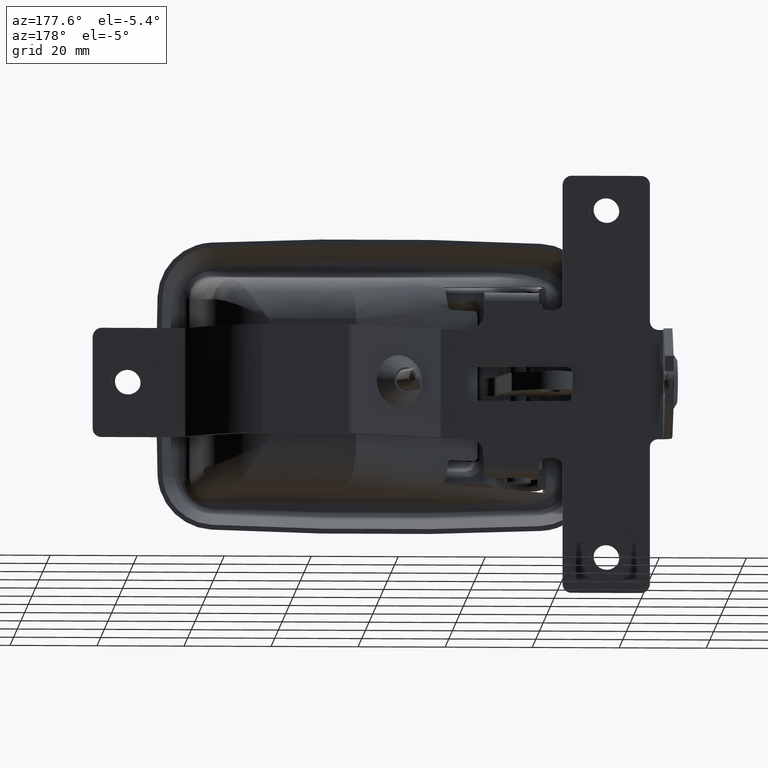
[diagram: clean part render]
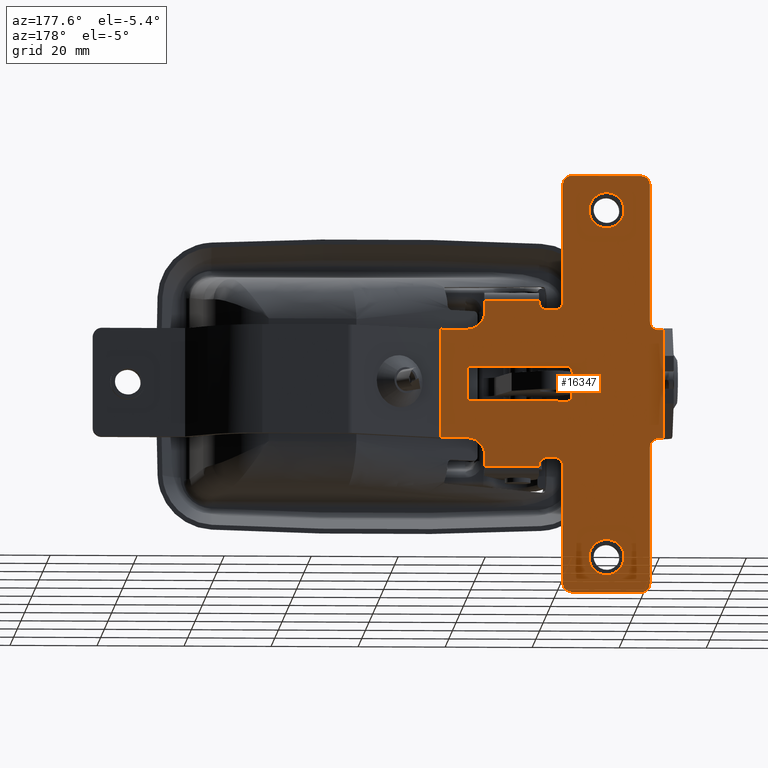
[diagram: same view with one face highlighted and labeled with its STEP entity id]
A machine part, auxiliary view. The second image highlights one B-rep face of the part: STEP entity #16347.
In plain terms, the highlighted face is a freeform B-spline surface patch.
Its self-contained STEP definition (entity closure, byte-faithful):
#12084=CARTESIAN_POINT('',(-49.696363222636450,8.999999999999899,-37.147398587274679));
#12085=VERTEX_POINT('',#12084);
#12091=CARTESIAN_POINT('',(-48.500000000000441,8.999999999999899,-40.000401880087153));
#12092=VERTEX_POINT('',#12091);
#12093=CARTESIAN_POINT('',(-49.696363222636450,8.999999999999899,-37.147398587274679));
#12094=CARTESIAN_POINT('',(-49.460286092493291,8.999999999999920,-37.379261225541761));
#12095=CARTESIAN_POINT('',(-49.066990061501564,8.999999999999856,-37.875914903676502));
#12096=CARTESIAN_POINT('',(-48.618578840467791,8.999999999999986,-38.842424312540189));
#12097=CARTESIAN_POINT('',(-48.499764177161012,8.999999999999828,-39.570220278554750));
#12098=CARTESIAN_POINT('',(-48.500000000000441,8.999999999999899,-40.000401880087153));
#12099=B_SPLINE_CURVE_WITH_KNOTS('',3,(#12093,#12094,#12095,#12096,#12097,#12098),.UNSPECIFIED.,.F.,.U.,(4,1,1,4),(0.000000042816873,0.992669129457216,1.886049108375447,3.176521239183770),.UNSPECIFIED.);
#12100=EDGE_CURVE('',#12085,#12092,#12099,.T.);
#12102=CARTESIAN_POINT('',(-52.500000000000000,8.999999999999901,-44.000399999999992));
#12103=VERTEX_POINT('',#12102);
#12104=CARTESIAN_POINT('',(-48.500000000000441,8.999999999999899,-40.000401880087153));
#12105=CARTESIAN_POINT('',(-48.499970343782437,8.999999999999886,-40.262196978756492));
#12106=CARTESIAN_POINT('',(-48.553189089344230,8.999999999999915,-40.802148372704472));
#12107=CARTESIAN_POINT('',(-48.816217715197077,8.999999999999902,-41.650728339848989));
#12108=CARTESIAN_POINT('',(-49.252751882862889,8.999999999999893,-42.389282633134833));
#12109=CARTESIAN_POINT('',(-49.878741546916473,8.999999999999908,-43.063099043232619));
#12110=CARTESIAN_POINT('',(-50.569594473648081,8.999999999999888,-43.543365053671323));
#12111=CARTESIAN_POINT('',(-51.485599516720292,8.999999999999913,-43.909651277703041));
#12112=CARTESIAN_POINT('',(-52.123651283077827,8.999999999999876,-44.000537310361302));
#12113=CARTESIAN_POINT('',(-52.500000000000000,8.999999999999901,-44.000399999999992));
#12114=B_SPLINE_CURVE_WITH_KNOTS('',3,(#12104,#12105,#12106,#12107,#12108,#12109,#12110,#12111,#12112,#12113),.UNSPECIFIED.,.F.,.U.,(4,1,1,1,1,1,1,4),(0.000000170210054,0.785386598141677,1.619894396847525,2.650764351238607,3.337944673513795,4.368800538172942,5.154212491704840,6.283223671863918),.UNSPECIFIED.);
#12115=EDGE_CURVE('',#12092,#12103,#12114,.T.);
#12117=CARTESIAN_POINT('',(-56.499999999999552,8.999999999999899,-40.000398119912852));
#12118=VERTEX_POINT('',#12117);
#12119=CARTESIAN_POINT('',(-52.500000000000000,8.999999999999901,-44.000399999999992));
#12120=CARTESIAN_POINT('',(-52.794517963964317,8.999999999999917,-44.000441232066777));
#12121=CARTESIAN_POINT('',(-53.432648317111038,8.999999999999888,-43.929645661647342));
#12122=CARTESIAN_POINT('',(-54.440209355671918,8.999999999999941,-43.562334047275392));
#12123=CARTESIAN_POINT('',(-55.292083265447118,8.999999999999776,-42.930593615533340));
#12124=CARTESIAN_POINT('',(-55.842762250588642,8.999999999999954,-42.233401469538180));
#12125=CARTESIAN_POINT('',(-56.194679159002682,8.999999999999881,-41.584695948084040));
#12126=CARTESIAN_POINT('',(-56.436462334972319,8.999999999999842,-40.867586538894230));
#12127=CARTESIAN_POINT('',(-56.500056926083019,9.000000000000030,-40.294919212355190));
#12128=CARTESIAN_POINT('',(-56.499999999999552,8.999999999999899,-40.000398119912852));
#12129=B_SPLINE_CURVE_WITH_KNOTS('',3,(#12119,#12120,#12121,#12122,#12123,#12124,#12125,#12126,#12127,#12128),.UNSPECIFIED.,.F.,.U.,(4,1,1,1,1,1,1,4),(0.000000169508537,0.883562507395871,1.914421330325885,3.190648703853657,4.025168912206824,4.565155515345772,5.399669861026443,6.283225791173750),.UNSPECIFIED.);
#12130=EDGE_CURVE('',#12103,#12118,#12129,.T.);
#12132=CARTESIAN_POINT('',(-55.353002084340297,8.999999999999899,-37.196762565103818));
#12133=VERTEX_POINT('',#12132);
#12134=CARTESIAN_POINT('',(-56.499999999999552,8.999999999999899,-40.000398119912852));
#12135=CARTESIAN_POINT('',(-56.500044389057322,8.999999999999911,-39.709146761992230));
#12136=CARTESIAN_POINT('',(-56.439644331168587,8.999999999999872,-39.159022780784163));
#12137=CARTESIAN_POINT('',(-56.116858117324398,8.999999999999927,-38.169886797482597));
#12138=CARTESIAN_POINT('',(-55.693605992404812,8.999999999999893,-37.542728060832758));
#12139=CARTESIAN_POINT('',(-55.353002084340297,8.999999999999899,-37.196762565103818));
#12140=B_SPLINE_CURVE_WITH_KNOTS('',3,(#12134,#12135,#12136,#12137,#12138,#12139),.UNSPECIFIED.,.F.,.U.,(4,1,1,4),(0.000000022678938,0.873776500411128,1.650466106444142,3.106760674571856),.UNSPECIFIED.);
#12141=EDGE_CURVE('',#12118,#12133,#12140,.T.);
#12177=CARTESIAN_POINT('',(-52.500000000000000,8.999999999999901,-36.000399999999999));
#12178=VERTEX_POINT('',#12177);
#12179=CARTESIAN_POINT('',(-55.353002084340297,8.999999999999899,-37.196762565103818));
#12180=CARTESIAN_POINT('',(-55.155899718891078,8.999999999999904,-36.996124650287562));
#12181=CARTESIAN_POINT('',(-54.731967140553543,8.999999999999901,-36.647332208655662));
#12182=CARTESIAN_POINT('',(-53.790148036519547,8.999999999999863,-36.152028647874531));
#12183=CARTESIAN_POINT('',(-53.012965001508057,8.999999999999936,-35.999923986551629));
#12184=CARTESIAN_POINT('',(-52.500000000000000,8.999999999999901,-36.000399999999999));
#12185=B_SPLINE_CURVE_WITH_KNOTS('',3,(#12179,#12180,#12181,#12182,#12183,#12184),.UNSPECIFIED.,.F.,.U.,(4,1,1,4),(0.000000042806638,0.843763403868885,1.637867859859363,3.176519734017759),.UNSPECIFIED.);
#12186=EDGE_CURVE('',#12133,#12178,#12185,.T.);
#12188=CARTESIAN_POINT('',(-52.500000000000000,8.999999999999901,-36.000399999999999));
#12189=CARTESIAN_POINT('',(-52.144024336973906,8.999999999999902,-36.000316934119851));
#12190=CARTESIAN_POINT('',(-51.399724774429913,8.999999999999904,-36.100329278498052));
#12191=CARTESIAN_POINT('',(-50.440995072586212,8.999999999999893,-36.519983644866343));
#12192=CARTESIAN_POINT('',(-49.904080125141597,8.999999999999902,-36.943246638037770));
#12193=CARTESIAN_POINT('',(-49.696363222636450,8.999999999999899,-37.147398587274679));
#12194=B_SPLINE_CURVE_WITH_KNOTS('',3,(#12188,#12189,#12190,#12191,#12192,#12193),.UNSPECIFIED.,.F.,.U.,(4,1,1,4),(0.000000022635578,1.067949865301164,2.232985287153880,3.106762191547471),.UNSPECIFIED.);
#12195=EDGE_CURVE('',#12178,#12085,#12194,.T.);
#12284=CARTESIAN_POINT('',(-49.696363222636450,8.999999999999899,42.853001412725327));
#12285=VERTEX_POINT('',#12284);
#12291=CARTESIAN_POINT('',(-48.500000000000441,8.999999999999899,39.999998119912860));
#12292=VERTEX_POINT('',#12291);
#12293=CARTESIAN_POINT('',(-49.696363222636450,8.999999999999899,42.853001412725327));
#12294=CARTESIAN_POINT('',(-49.389386399787263,8.999999999999908,42.551650581111211));
#12295=CARTESIAN_POINT('',(-48.923777182230772,8.999999999999877,41.916234349032408));
#12296=CARTESIAN_POINT('',(-48.566519428223508,8.999999999999897,40.909936820635998));
#12297=CARTESIAN_POINT('',(-48.499970605093388,8.999999999999911,40.281248355236272));
#12298=CARTESIAN_POINT('',(-48.500000000000441,8.999999999999899,39.999998119912860));
#12299=B_SPLINE_CURVE_WITH_KNOTS('',3,(#12293,#12294,#12295,#12296,#12297,#12298),.UNSPECIFIED.,.F.,.U.,(4,1,1,4),(0.000000042820151,1.290472173567691,2.332757478314516,3.176521239183723),.UNSPECIFIED.);
#12300=EDGE_CURVE('',#12285,#12292,#12299,.T.);
#12302=CARTESIAN_POINT('',(-52.500000000000000,8.999999999999901,36.000000000000007));
#12303=VERTEX_POINT('',#12302);
#12304=CARTESIAN_POINT('',(-48.500000000000441,8.999999999999899,39.999998119912860));
#12305=CARTESIAN_POINT('',(-48.499973363128660,8.999999999999886,39.738203286803561));
#12306=CARTESIAN_POINT('',(-48.553189155189649,8.999999999999931,39.198251799404957));
#12307=CARTESIAN_POINT('',(-48.806478905305937,8.999999999999892,38.381105044254767));
#12308=CARTESIAN_POINT('',(-49.216911438270422,8.999999999999876,37.666948173017417));
#12309=CARTESIAN_POINT('',(-49.804350852383443,8.999999999999897,37.002538701950812));
#12310=CARTESIAN_POINT('',(-50.456608481044888,8.999999999999917,36.524986104215792));
#12311=CARTESIAN_POINT('',(-51.387525954945318,8.999999999999883,36.112318113826809));
#12312=CARTESIAN_POINT('',(-52.058168628454652,8.999999999999911,35.999741752730920));
#12313=CARTESIAN_POINT('',(-52.500000000000000,8.999999999999901,36.000000000000007));
#12314=B_SPLINE_CURVE_WITH_KNOTS('',3,(#12304,#12305,#12306,#12307,#12308,#12309,#12310,#12311,#12312,#12313),.UNSPECIFIED.,.F.,.U.,(4,1,1,1,1,1,1,4),(0.000000170169266,0.785386598105968,1.619894396816537,2.552588982715761,3.239776739551552,4.270623102334425,4.957858098946082,6.283223671864081),.UNSPECIFIED.);
#12315=EDGE_CURVE('',#12292,#12303,#12314,.T.);
#12317=CARTESIAN_POINT('',(-56.499999999999552,8.999999999999901,40.000001880087140));
#12318=VERTEX_POINT('',#12317);
#12319=CARTESIAN_POINT('',(-52.500000000000000,8.999999999999901,36.000000000000007));
#12320=CARTESIAN_POINT('',(-52.761792362840652,8.999999999999888,35.999979388362718));
#12321=CARTESIAN_POINT('',(-53.367213538327412,8.999999999999949,36.059588324761897));
#12322=CARTESIAN_POINT('',(-54.211461621947450,8.999999999999840,36.344185050263889));
#12323=CARTESIAN_POINT('',(-54.936973560463350,8.999999999999982,36.797532702100142));
#12324=CARTESIAN_POINT('',(-55.538614797403483,8.999999999999899,37.356387097814022));
#12325=CARTESIAN_POINT('',(-55.988305797968700,8.999999999999742,37.986650606097911));
#12326=CARTESIAN_POINT('',(-56.387688910985581,8.999999999999989,38.887520443615841));
#12327=CARTESIAN_POINT('',(-56.500257008506708,8.999999999999945,39.558172877117983));
#12328=CARTESIAN_POINT('',(-56.499999999999552,8.999999999999901,40.000001880087140));
#12329=B_SPLINE_CURVE_WITH_KNOTS('',3,(#12319,#12320,#12321,#12322,#12323,#12324,#12325,#12326,#12327,#12328),.UNSPECIFIED.,.F.,.U.,(4,1,1,1,1,1,1,4),(0.000000169506634,0.785386862743604,1.816246544497132,2.650765245580010,3.337945802600284,4.270624541624022,4.957859770507705,6.283225791173744),.UNSPECIFIED.);
#12330=EDGE_CURVE('',#12303,#12318,#12329,.T.);
#12332=CARTESIAN_POINT('',(-55.353002084340297,8.999999999999901,42.803637434896167));
#12333=VERTEX_POINT('',#12332);
#12334=CARTESIAN_POINT('',(-56.499999999999552,8.999999999999901,40.000001880087140));
#12335=CARTESIAN_POINT('',(-56.500111625079228,8.999999999999911,40.355990597061648));
#12336=CARTESIAN_POINT('',(-56.426041123592817,8.999999999999892,40.906053378532540));
#12337=CARTESIAN_POINT('',(-56.080034514011821,8.999999999999918,41.885059688857332));
#12338=CARTESIAN_POINT('',(-55.693613142159030,8.999999999999908,42.457664420544241));
#12339=CARTESIAN_POINT('',(-55.353002084340297,8.999999999999901,42.803637434896167));
#12340=B_SPLINE_CURVE_WITH_KNOTS('',3,(#12334,#12335,#12336,#12337,#12338,#12339),.UNSPECIFIED.,.F.,.U.,(4,1,1,4),(0.000000022678830,1.067949343842104,1.650466106444013,3.106760674571859),.UNSPECIFIED.);
#12341=EDGE_CURVE('',#12318,#12333,#12340,.T.);
#12377=CARTESIAN_POINT('',(-52.500000000000000,8.999999999999901,44.0));
#12378=VERTEX_POINT('',#12377);
#12379=CARTESIAN_POINT('',(-55.353002084340297,8.999999999999901,42.803637434896167));
#12380=CARTESIAN_POINT('',(-55.132725576792012,8.999999999999867,43.027899457938439));
#12381=CARTESIAN_POINT('',(-54.703874465436790,8.999999999999961,43.371827859241243));
#12382=CARTESIAN_POINT('',(-53.757063775429430,8.999999999999863,43.854850624080093));
#12383=CARTESIAN_POINT('',(-53.012968084609163,8.999999999999925,44.000465879040782));
#12384=CARTESIAN_POINT('',(-52.500000000000000,8.999999999999901,44.0));
#12385=B_SPLINE_CURVE_WITH_KNOTS('',3,(#12379,#12380,#12381,#12382,#12383,#12384),.UNSPECIFIED.,.F.,.U.,(4,1,1,4),(0.000000042804671,0.943031283647884,1.637867859859471,3.176519734017751),.UNSPECIFIED.);
#12386=EDGE_CURVE('',#12333,#12378,#12385,.T.);
#12388=CARTESIAN_POINT('',(-52.500000000000000,8.999999999999901,44.0));
#12389=CARTESIAN_POINT('',(-52.014514346469937,8.999999999999908,44.000392391973293));
#12390=CARTESIAN_POINT('',(-51.270516119612182,8.999999999999897,43.862804604869339));
#12391=CARTESIAN_POINT('',(-50.338781756700591,8.999999999999904,43.399656856212353));
#12392=CARTESIAN_POINT('',(-49.904067990461073,8.999999999999895,43.057181410538533));
#12393=CARTESIAN_POINT('',(-49.696363222636450,8.999999999999899,42.853001412725327));
#12394=B_SPLINE_CURVE_WITH_KNOTS('',3,(#12388,#12389,#12390,#12391,#12392,#12393),.UNSPECIFIED.,.F.,.U.,(4,1,1,4),(0.000000022636892,1.456295301868011,2.232985287153747,3.106762191547466),.UNSPECIFIED.);
#12395=EDGE_CURVE('',#12378,#12285,#12394,.T.);
#13638=CARTESIAN_POINT('',(-37.0,9.0,19.100000000000001));
#13639=VERTEX_POINT('',#13638);
#13640=CARTESIAN_POINT('',(-24.500000000000000,9.0,19.100000000000001));
#13641=VERTEX_POINT('',#13640);
#13642=CARTESIAN_POINT('',(-37.0,9.0,19.100000000000001));
#13643=CARTESIAN_POINT('',(-24.500000000000000,9.0,19.100000000000001));
#13644=QUASI_UNIFORM_CURVE('',1,(#13642,#13643),.UNSPECIFIED.,.F.,.U.);
#13645=EDGE_CURVE('',#13639,#13641,#13644,.T.);
#13712=CARTESIAN_POINT('',(-37.0,9.0,-19.100000000000001));
#13713=VERTEX_POINT('',#13712);
#13719=CARTESIAN_POINT('',(-24.500000000000000,9.0,-19.100000000000001));
#13720=VERTEX_POINT('',#13719);
#13721=CARTESIAN_POINT('',(-24.500000000000000,9.0,-19.100000000000001));
#13722=CARTESIAN_POINT('',(-37.0,9.0,-19.100000000000001));
#13723=QUASI_UNIFORM_CURVE('',1,(#13721,#13722),.UNSPECIFIED.,.F.,.U.);
#13724=EDGE_CURVE('',#13720,#13713,#13723,.T.);
#14168=CARTESIAN_POINT('',(-44.538800000000002,8.999999999999901,3.0));
#14169=VERTEX_POINT('',#14168);
#14175=CARTESIAN_POINT('',(-43.538800000000002,8.999999999999901,4.0));
#14176=VERTEX_POINT('',#14175);
#14177=CARTESIAN_POINT('',(-43.538800000000002,8.999999999999901,4.0));
#14178=CARTESIAN_POINT('',(-43.620605191350023,8.999999999999899,4.000010338082505));
#14179=CARTESIAN_POINT('',(-43.816983386163443,8.999999999999911,3.975820734492554));
#14180=CARTESIAN_POINT('',(-44.067416670032877,8.999999999999902,3.864820685999502));
#14181=CARTESIAN_POINT('',(-44.300490570515429,8.999999999999908,3.668703862296265));
#14182=CARTESIAN_POINT('',(-44.485019356332593,8.999999999999890,3.392616515579106));
#14183=CARTESIAN_POINT('',(-44.538968706042482,8.999999999999906,3.139099220593385));
#14184=CARTESIAN_POINT('',(-44.538800000000002,8.999999999999901,3.0));
#14185=B_SPLINE_CURVE_WITH_KNOTS('',3,(#14177,#14178,#14179,#14180,#14181,#14182,#14183,#14184),.UNSPECIFIED.,.F.,.U.,(4,1,1,1,1,4),(0.000000316539192,0.245429941989382,0.589086540228977,0.809914846752395,1.153582026486022,1.570835744415496),.UNSPECIFIED.);
#14186=EDGE_CURVE('',#14176,#14169,#14185,.T.);
#14209=CARTESIAN_POINT('',(-21.500000000000000,8.999999999999901,4.0));
#14210=VERTEX_POINT('',#14209);
#14211=CARTESIAN_POINT('',(-21.500000000000000,8.999999999999901,4.0));
#14212=CARTESIAN_POINT('',(-43.538800000000002,8.999999999999901,4.0));
#14213=QUASI_UNIFORM_CURVE('',1,(#14211,#14212),.UNSPECIFIED.,.F.,.U.);
#14214=EDGE_CURVE('',#14210,#14176,#14213,.T.);
#14252=CARTESIAN_POINT('',(-20.500000000000000,8.999999999999901,3.0));
#14253=VERTEX_POINT('',#14252);
#14254=CARTESIAN_POINT('',(-20.500000000000000,8.999999999999901,3.0));
#14255=CARTESIAN_POINT('',(-20.499988649702480,8.999999999999904,3.098161484066635));
#14256=CARTESIAN_POINT('',(-20.533887464722429,8.999999999999899,3.327295164917385));
#14257=CARTESIAN_POINT('',(-20.691147990141879,8.999999999999893,3.621442481356049));
#14258=CARTESIAN_POINT('',(-20.942459266899611,8.999999999999943,3.849165957845934));
#14259=CARTESIAN_POINT('',(-21.213659177159460,8.999999999999732,3.973335952433076));
#14260=CARTESIAN_POINT('',(-21.410006909707509,9.000000000000089,4.000026482414648));
#14261=CARTESIAN_POINT('',(-21.500000000000000,8.999999999999901,4.0));
#14262=B_SPLINE_CURVE_WITH_KNOTS('',3,(#14254,#14255,#14256,#14257,#14258,#14259,#14260,#14261),.UNSPECIFIED.,.F.,.U.,(4,1,1,1,1,4),(0.000000316537550,0.294521889950027,0.687263051410395,0.981751020764692,1.300856679780036,1.570835744415502),.UNSPECIFIED.);
#14263=EDGE_CURVE('',#14253,#14210,#14262,.T.);
#14286=CARTESIAN_POINT('',(-20.500000000000000,8.999999999999901,-3.0));
#14287=VERTEX_POINT('',#14286);
#14288=CARTESIAN_POINT('',(-20.500000000000000,8.999999999999901,-3.0));
#14289=CARTESIAN_POINT('',(-20.500000000000000,8.999999999999901,3.0));
#14290=QUASI_UNIFORM_CURVE('',1,(#14288,#14289),.UNSPECIFIED.,.F.,.U.);
#14291=EDGE_CURVE('',#14287,#14253,#14290,.T.);
#14328=CARTESIAN_POINT('',(-21.500000000000000,8.999999999999901,-4.0));
#14329=VERTEX_POINT('',#14328);
#14330=CARTESIAN_POINT('',(-21.500000000000000,8.999999999999901,-4.0));
#14331=CARTESIAN_POINT('',(-21.344515482730561,8.999999999999917,-4.000263452007633));
#14332=CARTESIAN_POINT('',(-21.074786756964389,8.999999999999885,-3.935757510508313));
#14333=CARTESIAN_POINT('',(-20.774736593609489,8.999999999999888,-3.713129420643664));
#14334=CARTESIAN_POINT('',(-20.560380951699209,8.999999999999949,-3.408855108957863));
#14335=CARTESIAN_POINT('',(-20.499728786057378,8.999999999999867,-3.155500708682451));
#14336=CARTESIAN_POINT('',(-20.500000000000000,8.999999999999901,-3.0));
#14337=B_SPLINE_CURVE_WITH_KNOTS('',3,(#14330,#14331,#14332,#14333,#14334,#14335,#14336),.UNSPECIFIED.,.F.,.U.,(4,1,1,1,4),(0.000000316539592,0.466343486453889,0.809914846752917,1.104490577724666,1.570835744415537),.UNSPECIFIED.);
#14338=EDGE_CURVE('',#14329,#14287,#14337,.T.);
#14361=CARTESIAN_POINT('',(-43.538800000000002,8.999999999999901,-4.0));
#14362=VERTEX_POINT('',#14361);
#14363=CARTESIAN_POINT('',(-43.538800000000002,8.999999999999901,-4.0));
#14364=CARTESIAN_POINT('',(-21.500000000000000,8.999999999999901,-4.0));
#14365=QUASI_UNIFORM_CURVE('',1,(#14363,#14364),.UNSPECIFIED.,.F.,.U.);
#14366=EDGE_CURVE('',#14362,#14329,#14365,.T.);
#14403=CARTESIAN_POINT('',(-44.538800000000002,8.999999999999901,-3.0));
#14404=VERTEX_POINT('',#14403);
#14405=CARTESIAN_POINT('',(-44.538800000000002,8.999999999999901,-3.0));
#14406=CARTESIAN_POINT('',(-44.539330963898848,8.999999999999917,-3.180135669998899));
#14407=CARTESIAN_POINT('',(-44.468440694373761,8.999999999999883,-3.433202414132395));
#14408=CARTESIAN_POINT('',(-44.253980992878773,8.999999999999929,-3.714822739010366));
#14409=CARTESIAN_POINT('',(-43.980234209349447,8.999999999999865,-3.928696788878382));
#14410=CARTESIAN_POINT('',(-43.710694767699842,8.999999999999950,-4.000378646256803));
#14411=CARTESIAN_POINT('',(-43.538800000000002,8.999999999999901,-4.0));
#14412=B_SPLINE_CURVE_WITH_KNOTS('',3,(#14405,#14406,#14407,#14408,#14409,#14410,#14411),.UNSPECIFIED.,.F.,.U.,(4,1,1,1,4),(0.000000316540120,0.539993994382229,0.760920445867800,1.055397118809246,1.570835744415493),.UNSPECIFIED.);
#14413=EDGE_CURVE('',#14404,#14362,#14412,.T.);
#14434=CARTESIAN_POINT('',(-44.538800000000002,8.999999999999901,3.0));
#14435=CARTESIAN_POINT('',(-44.538800000000002,8.999999999999901,-3.0));
#14436=QUASI_UNIFORM_CURVE('',1,(#14434,#14435),.UNSPECIFIED.,.F.,.U.);
#14437=EDGE_CURVE('',#14169,#14404,#14436,.T.);
#14448=CARTESIAN_POINT('',(-65.500000000000000,8.999999999999901,-12.500000000000000));
#14449=VERTEX_POINT('',#14448);
#14450=CARTESIAN_POINT('',(-65.500000000000000,9.0,12.500000000000000));
#14451=VERTEX_POINT('',#14450);
#14452=CARTESIAN_POINT('',(-65.500000000000000,8.999999999999901,-12.500000000000000));
#14453=CARTESIAN_POINT('',(-65.500000000000000,9.0,12.500000000000000));
#14454=QUASI_UNIFORM_CURVE('',1,(#14452,#14453),.UNSPECIFIED.,.F.,.U.);
#14455=EDGE_CURVE('',#14449,#14451,#14454,.T.);
#14798=CARTESIAN_POINT('',(-37.0,8.999999999999901,19.0));
#14799=VERTEX_POINT('',#14798);
#14805=CARTESIAN_POINT('',(-39.0,8.999999999999901,17.0));
#14806=VERTEX_POINT('',#14805);
#14807=CARTESIAN_POINT('',(-39.0,8.999999999999901,17.0));
#14808=CARTESIAN_POINT('',(-38.738132642857209,8.999999999999886,16.999684465129270));
#14809=CARTESIAN_POINT('',(-38.362058173940291,8.999999999999913,17.075025303844360));
#14810=CARTESIAN_POINT('',(-37.851790494228347,8.999999999999879,17.339723506475309));
#14811=CARTESIAN_POINT('',(-37.488620967075697,8.999999999999933,17.653033019632922));
#14812=CARTESIAN_POINT('',(-37.112984391162144,8.999999999999874,18.215034426936839));
#14813=CARTESIAN_POINT('',(-36.999408732873484,8.999999999999924,18.688981520675910));
#14814=CARTESIAN_POINT('',(-37.0,8.999999999999901,19.0));
#14815=B_SPLINE_CURVE_WITH_KNOTS('',3,(#14807,#14808,#14809,#14810,#14811,#14812,#14813,#14814),.UNSPECIFIED.,.F.,.U.,(4,1,1,1,1,4),(0.000000287140076,0.785418087528789,1.129064130189369,1.718073068149598,2.208977835777261,3.141671488696547),.UNSPECIFIED.);
#14816=EDGE_CURVE('',#14806,#14799,#14815,.T.);
#14852=CARTESIAN_POINT('',(-40.500000000000000,8.999999999999901,17.0));
#14853=VERTEX_POINT('',#14852);
#14854=CARTESIAN_POINT('',(-39.0,8.999999999999901,17.0));
#14855=CARTESIAN_POINT('',(-40.500000000000000,8.999999999999901,17.0));
#14856=QUASI_UNIFORM_CURVE('',1,(#14854,#14855),.UNSPECIFIED.,.F.,.U.);
#14857=EDGE_CURVE('',#14806,#14853,#14856,.T.);
#14882=CARTESIAN_POINT('',(-42.500000000000000,8.999999999999901,19.0));
#14883=VERTEX_POINT('',#14882);
#14884=CARTESIAN_POINT('',(-42.500000000000000,8.999999999999901,19.0));
#14885=CARTESIAN_POINT('',(-42.500315980665214,8.999999999999915,18.738134103234199));
#14886=CARTESIAN_POINT('',(-42.424980898492272,8.999999999999892,18.362051613717359));
#14887=CARTESIAN_POINT('',(-42.160263982941757,8.999999999999917,17.851803430130371));
#14888=CARTESIAN_POINT('',(-41.846984936231109,8.999999999999865,17.488602360850841));
#14889=CARTESIAN_POINT('',(-41.284954184308077,8.999999999999973,17.112999303232382));
#14890=CARTESIAN_POINT('',(-40.811022563649182,8.999999999999902,16.999402360951731));
#14891=CARTESIAN_POINT('',(-40.500000000000000,8.999999999999901,17.0));
#14892=B_SPLINE_CURVE_WITH_KNOTS('',3,(#14884,#14885,#14886,#14887,#14888,#14889,#14890,#14891),.UNSPECIFIED.,.F.,.U.,(4,1,1,1,1,4),(0.000000287142174,0.785418087531084,1.129064130191790,1.718073068151907,2.208977835778769,3.141671488696511),.UNSPECIFIED.);
#14893=EDGE_CURVE('',#14883,#14853,#14892,.T.);
#14929=CARTESIAN_POINT('',(-42.500000000000000,8.999999999999901,46.0));
#14930=VERTEX_POINT('',#14929);
#14931=CARTESIAN_POINT('',(-42.500000000000000,8.999999999999901,19.0));
#14932=CARTESIAN_POINT('',(-42.500000000000000,8.999999999999901,46.0));
#14933=QUASI_UNIFORM_CURVE('',1,(#14931,#14932),.UNSPECIFIED.,.F.,.U.);
#14934=EDGE_CURVE('',#14883,#14930,#14933,.T.);
#14972=CARTESIAN_POINT('',(-44.500000000000000,8.999999999999901,48.0));
#14973=VERTEX_POINT('',#14972);
#14974=CARTESIAN_POINT('',(-42.500000000000000,8.999999999999901,46.0));
#14975=CARTESIAN_POINT('',(-42.499885462015023,8.999999999999902,46.212717820929399));
#14976=CARTESIAN_POINT('',(-42.568486546709892,8.999999999999897,46.638107994164749));
#14977=CARTESIAN_POINT('',(-42.843209267927982,8.999999999999904,47.167630346258413));
#14978=CARTESIAN_POINT('',(-43.241125598146532,8.999999999999870,47.585546078460617));
#14979=CARTESIAN_POINT('',(-43.780234423668318,8.999999999999970,47.908686670754321));
#14980=CARTESIAN_POINT('',(-44.238153599042242,8.999999999999796,48.000292607813527));
#14981=CARTESIAN_POINT('',(-44.500000000000000,8.999999999999901,48.0));
#14982=B_SPLINE_CURVE_WITH_KNOTS('',3,(#14974,#14975,#14976,#14977,#14978,#14979,#14980,#14981),.UNSPECIFIED.,.F.,.U.,(4,1,1,1,1,4),(0.000000287141676,0.638142235001139,1.276337533546506,1.767177705976663,2.356253688307754,3.141671488696463),.UNSPECIFIED.);
#14983=EDGE_CURVE('',#14930,#14973,#14982,.T.);
#15006=CARTESIAN_POINT('',(-60.500000000000000,8.999999999999901,48.0));
#15007=VERTEX_POINT('',#15006);
#15008=CARTESIAN_POINT('',(-44.500000000000000,8.999999999999901,48.0));
#15009=CARTESIAN_POINT('',(-60.500000000000000,8.999999999999901,48.0));
#15010=QUASI_UNIFORM_CURVE('',1,(#15008,#15009),.UNSPECIFIED.,.F.,.U.);
#15011=EDGE_CURVE('',#14973,#15007,#15010,.T.);
#15049=CARTESIAN_POINT('',(-62.500000000000000,8.999999999999901,46.0));
#15050=VERTEX_POINT('',#15049);
#15051=CARTESIAN_POINT('',(-60.500000000000000,8.999999999999901,48.0));
#15052=CARTESIAN_POINT('',(-60.811028710695552,8.999999999999892,48.000581290646501));
#15053=CARTESIAN_POINT('',(-61.235930187978802,8.999999999999904,47.898793298361269));
#15054=CARTESIAN_POINT('',(-61.725242661468293,8.999999999999902,47.597088167921882));
#15055=CARTESIAN_POINT('',(-62.038837968818129,8.999999999999901,47.305816673302353));
#15056=CARTESIAN_POINT('',(-62.387026900465571,8.999999999999893,46.784972820830333));
#15057=CARTESIAN_POINT('',(-62.500589505631872,8.999999999999917,46.311017609661150));
#15058=CARTESIAN_POINT('',(-62.500000000000000,8.999999999999901,46.0));
#15059=B_SPLINE_CURVE_WITH_KNOTS('',3,(#15051,#15052,#15053,#15054,#15055,#15056,#15057,#15058),.UNSPECIFIED.,.F.,.U.,(4,1,1,1,1,4),(0.000000287136406,0.932693940056489,1.276337533543943,1.718073068149574,2.208977835777600,3.141671488696456),.UNSPECIFIED.);
#15060=EDGE_CURVE('',#15007,#15050,#15059,.T.);
#15083=CARTESIAN_POINT('',(-62.500000000000000,8.999999999999901,14.500000000000000));
#15084=VERTEX_POINT('',#15083);
#15085=CARTESIAN_POINT('',(-62.500000000000000,8.999999999999901,46.0));
#15086=CARTESIAN_POINT('',(-62.500000000000000,8.999999999999901,14.500000000000000));
#15087=QUASI_UNIFORM_CURVE('',1,(#15085,#15086),.UNSPECIFIED.,.F.,.U.);
#15088=EDGE_CURVE('',#15050,#15084,#15087,.T.);
#15113=CARTESIAN_POINT('',(-64.500000000000000,8.999999999999901,12.500000000000000));
#15114=VERTEX_POINT('',#15113);
#15115=CARTESIAN_POINT('',(-64.500000000000000,8.999999999999901,12.500000000000000));
#15116=CARTESIAN_POINT('',(-64.238158860634030,8.999999999999901,12.499717273771150));
#15117=CARTESIAN_POINT('',(-63.731112974236403,8.999999999999922,12.601044456832240));
#15118=CARTESIAN_POINT('',(-63.159163211570437,8.999999999999865,12.973006076003900));
#15119=CARTESIAN_POINT('',(-62.824658824784649,8.999999999999973,13.381013378375350));
#15120=CARTESIAN_POINT('',(-62.575001714677398,8.999999999999854,13.862040685738661));
#15121=CARTESIAN_POINT('',(-62.499691571917197,8.999999999999934,14.238139084880380));
#15122=CARTESIAN_POINT('',(-62.500000000000000,8.999999999999901,14.500000000000000));
#15123=B_SPLINE_CURVE_WITH_KNOTS('',3,(#15115,#15116,#15117,#15118,#15119,#15120,#15121,#15122),.UNSPECIFIED.,.F.,.U.,(4,1,1,1,1,4),(0.000000287133636,0.785418087524479,1.521788409456852,2.012607645644544,2.356253688306194,3.141671488696570),.UNSPECIFIED.);
#15124=EDGE_CURVE('',#15114,#15084,#15123,.T.);
#15164=CARTESIAN_POINT('',(-64.500000000000000,8.999999999999901,12.500000000000000));
#15165=CARTESIAN_POINT('',(-65.500000000000000,9.0,12.500000000000000));
#15166=QUASI_UNIFORM_CURVE('',1,(#15164,#15165),.UNSPECIFIED.,.F.,.U.);
#15167=EDGE_CURVE('',#15114,#14451,#15166,.T.);
#15194=CARTESIAN_POINT('',(-64.500000000000000,8.999999999999901,-12.500000000000000));
#15195=VERTEX_POINT('',#15194);
#15196=CARTESIAN_POINT('',(-65.500000000000000,8.999999999999901,-12.500000000000000));
#15197=CARTESIAN_POINT('',(-64.500000000000000,8.999999999999901,-12.500000000000000));
#15198=QUASI_UNIFORM_CURVE('',1,(#15196,#15197),.UNSPECIFIED.,.F.,.U.);
#15199=EDGE_CURVE('',#14449,#15195,#15198,.T.);
#15224=CARTESIAN_POINT('',(-62.500000000000000,8.999999999999901,-14.500000000000000));
#15225=VERTEX_POINT('',#15224);
#15226=CARTESIAN_POINT('',(-62.500000000000000,8.999999999999901,-14.500000000000000));
#15227=CARTESIAN_POINT('',(-62.499885416266963,8.999999999999904,-14.287279595829339));
#15228=CARTESIAN_POINT('',(-62.568504543482653,8.999999999999906,-13.861902127028751));
#15229=CARTESIAN_POINT('',(-62.835556065197622,8.999999999999888,-13.347072580601450));
#15230=CARTESIAN_POINT('',(-63.205394265156912,8.999999999999917,-12.949090112346029));
#15231=CARTESIAN_POINT('',(-63.731288706403689,8.999999999999906,-12.606804039556589));
#15232=CARTESIAN_POINT('',(-64.205384702425718,8.999999999999881,-12.499537919874090));
#15233=CARTESIAN_POINT('',(-64.500000000000000,8.999999999999901,-12.500000000000000));
#15234=B_SPLINE_CURVE_WITH_KNOTS('',3,(#15226,#15227,#15228,#15229,#15230,#15231,#15232,#15233),.UNSPECIFIED.,.F.,.U.,(4,1,1,1,1,4),(0.000000287133143,0.638142234994526,1.276337533542020,1.718073068148285,2.258074593099028,3.141671488696494),.UNSPECIFIED.);
#15235=EDGE_CURVE('',#15225,#15195,#15234,.T.);
#15271=CARTESIAN_POINT('',(-62.500000000000000,8.999999999999901,-46.000399999999999));
#15272=VERTEX_POINT('',#15271);
#15273=CARTESIAN_POINT('',(-62.500000000000000,8.999999999999901,-14.500000000000000));
#15274=CARTESIAN_POINT('',(-62.500000000000000,8.999999999999901,-46.000399999999999));
#15275=QUASI_UNIFORM_CURVE('',1,(#15273,#15274),.UNSPECIFIED.,.F.,.U.);
#15276=EDGE_CURVE('',#15225,#15272,#15275,.T.);
#15314=CARTESIAN_POINT('',(-60.500000000000000,8.999999999999901,-48.000399999999999));
#15315=VERTEX_POINT('',#15314);
#15316=CARTESIAN_POINT('',(-62.500000000000000,8.999999999999901,-46.000399999999999));
#15317=CARTESIAN_POINT('',(-62.500468033829357,8.999999999999908,-46.295028654571283));
#15318=CARTESIAN_POINT('',(-62.404273892128153,8.999999999999888,-46.720035966644851));
#15319=CARTESIAN_POINT('',(-62.108305752750987,8.999999999999920,-47.213585496132012));
#15320=CARTESIAN_POINT('',(-61.805812917427531,8.999999999999902,-47.539235739633909));
#15321=CARTESIAN_POINT('',(-61.284976706696042,8.999999999999874,-47.887428251200063));
#15322=CARTESIAN_POINT('',(-60.811016904573151,8.999999999999911,-48.000988427182229));
#15323=CARTESIAN_POINT('',(-60.500000000000000,8.999999999999901,-48.000399999999999));
#15324=B_SPLINE_CURVE_WITH_KNOTS('',3,(#15316,#15317,#15318,#15319,#15320,#15321,#15322,#15323),.UNSPECIFIED.,.F.,.U.,(4,1,1,1,1,4),(0.000000287134795,0.883597182733047,1.276337533542622,1.718073068148501,2.208977835776680,3.141671488696526),.UNSPECIFIED.);
#15325=EDGE_CURVE('',#15272,#15315,#15324,.T.);
#15348=CARTESIAN_POINT('',(-44.500000000000000,8.999999999999901,-48.000399999999999));
#15349=VERTEX_POINT('',#15348);
#15350=CARTESIAN_POINT('',(-60.500000000000000,8.999999999999901,-48.000399999999999));
#15351=CARTESIAN_POINT('',(-44.500000000000000,8.999999999999901,-48.000399999999999));
#15352=QUASI_UNIFORM_CURVE('',1,(#15350,#15351),.UNSPECIFIED.,.F.,.U.);
#15353=EDGE_CURVE('',#15315,#15349,#15352,.T.);
#15391=CARTESIAN_POINT('',(-42.500000000000000,8.999999999999901,-46.000399999999999));
#15392=VERTEX_POINT('',#15391);
#15393=CARTESIAN_POINT('',(-44.500000000000000,8.999999999999901,-48.000399999999999));
#15394=CARTESIAN_POINT('',(-44.287282899511148,8.999999999999911,-48.000513998336473));
#15395=CARTESIAN_POINT('',(-43.861887919477368,8.999999999999893,-47.931913962878852));
#15396=CARTESIAN_POINT('',(-43.347098111592977,8.999999999999908,-47.664818703657737));
#15397=CARTESIAN_POINT('',(-42.924898522629022,8.999999999999877,-47.272635858070423));
#15398=CARTESIAN_POINT('',(-42.594543919825178,8.999999999999947,-46.736561960242391));
#15399=CARTESIAN_POINT('',(-42.499721406770327,8.999999999999856,-46.262232527262078));
#15400=CARTESIAN_POINT('',(-42.500000000000000,8.999999999999901,-46.000399999999999));
#15401=B_SPLINE_CURVE_WITH_KNOTS('',3,(#15393,#15394,#15395,#15396,#15397,#15398,#15399,#15400),.UNSPECIFIED.,.F.,.U.,(4,1,1,1,1,4),(0.000000287138061,0.638142234998579,1.276337533544931,1.718073068150294,2.356253688307326,3.141671488696477),.UNSPECIFIED.);
#15402=EDGE_CURVE('',#15349,#15392,#15401,.T.);
#15425=CARTESIAN_POINT('',(-42.500000000000000,8.999999999999901,-19.0));
#15426=VERTEX_POINT('',#15425);
#15427=CARTESIAN_POINT('',(-42.500000000000000,8.999999999999901,-46.000399999999999));
#15428=CARTESIAN_POINT('',(-42.500000000000000,8.999999999999901,-19.0));
#15429=QUASI_UNIFORM_CURVE('',1,(#15427,#15428),.UNSPECIFIED.,.F.,.U.);
#15430=EDGE_CURVE('',#15392,#15426,#15429,.T.);
#15455=CARTESIAN_POINT('',(-40.500000000000000,8.999999999999901,-17.0));
#15456=VERTEX_POINT('',#15455);
#15457=CARTESIAN_POINT('',(-40.500000000000000,8.999999999999901,-17.0));
#15458=CARTESIAN_POINT('',(-40.794623657697421,8.999999999999899,-16.999536340369630));
#15459=CARTESIAN_POINT('',(-41.219643661825110,8.999999999999908,-17.095718123743030));
#15460=CARTESIAN_POINT('',(-41.713170421945307,8.999999999999899,-17.391705728680090));
#15461=CARTESIAN_POINT('',(-42.075108199148367,8.999999999999918,-17.727752560388229));
#15462=CARTESIAN_POINT('',(-42.405456916630499,8.999999999999892,-18.263837134368380));
#15463=CARTESIAN_POINT('',(-42.500278102130643,8.999999999999924,-18.738167968656420));
#15464=CARTESIAN_POINT('',(-42.500000000000000,8.999999999999901,-19.0));
#15465=B_SPLINE_CURVE_WITH_KNOTS('',3,(#15457,#15458,#15459,#15460,#15461,#15462,#15463,#15464),.UNSPECIFIED.,.F.,.U.,(4,1,1,1,1,4),(0.000000287143277,0.883597182738423,1.276337533546723,1.718073068151204,2.356253688307657,3.141671488696474),.UNSPECIFIED.);
#15466=EDGE_CURVE('',#15456,#15426,#15465,.T.);
#15502=CARTESIAN_POINT('',(-39.0,8.999999999999901,-17.0));
#15503=VERTEX_POINT('',#15502);
#15504=CARTESIAN_POINT('',(-40.500000000000000,8.999999999999901,-17.0));
#15505=CARTESIAN_POINT('',(-39.0,8.999999999999901,-17.0));
#15506=QUASI_UNIFORM_CURVE('',1,(#15504,#15505),.UNSPECIFIED.,.F.,.U.);
#15507=EDGE_CURVE('',#15456,#15503,#15506,.T.);
#15532=CARTESIAN_POINT('',(-37.0,8.999999999999901,-19.0));
#15533=VERTEX_POINT('',#15532);
#15534=CARTESIAN_POINT('',(-37.0,8.999999999999901,-19.0));
#15535=CARTESIAN_POINT('',(-36.999872033744573,8.999999999999901,-18.787273671511180));
#15536=CARTESIAN_POINT('',(-37.055370701184209,8.999999999999897,-18.443750943333111));
#15537=CARTESIAN_POINT('',(-37.275219974855638,8.999999999999906,-17.947721149411699));
#15538=CARTESIAN_POINT('',(-37.631253357376721,8.999999999999913,-17.491172308618431));
#15539=CARTESIAN_POINT('',(-38.231110609014173,8.999999999999888,-17.101033297608531));
#15540=CARTESIAN_POINT('',(-38.738159209588702,8.999999999999917,-16.999719132942861));
#15541=CARTESIAN_POINT('',(-39.0,8.999999999999901,-17.0));
#15542=B_SPLINE_CURVE_WITH_KNOTS('',3,(#15534,#15535,#15536,#15537,#15538,#15539,#15540,#15541),.UNSPECIFIED.,.F.,.U.,(4,1,1,1,1,4),(0.000000287134696,0.638142234995864,1.030865319388375,1.619883366374840,2.356253688306702,3.141671488696531),.UNSPECIFIED.);
#15543=EDGE_CURVE('',#15533,#15503,#15542,.T.);
#15599=CARTESIAN_POINT('',(-24.500000000000000,8.999999999999901,-16.500000000000000));
#15600=VERTEX_POINT('',#15599);
#15601=CARTESIAN_POINT('',(-24.500000000000000,9.0,-19.100000000000001));
#15602=CARTESIAN_POINT('',(-24.500000000000000,8.999999999999901,-16.500000000000000));
#15603=QUASI_UNIFORM_CURVE('',1,(#15601,#15602),.UNSPECIFIED.,.F.,.U.);
#15604=EDGE_CURVE('',#13720,#15600,#15603,.T.);
#15629=CARTESIAN_POINT('',(-20.500000000000000,8.999999999999901,-12.500000000000000));
#15630=VERTEX_POINT('',#15629);
#15631=CARTESIAN_POINT('',(-20.500000000000000,8.999999999999901,-12.500000000000000));
#15632=CARTESIAN_POINT('',(-20.892705268080210,8.999999999999908,-12.499867228591469));
#15633=CARTESIAN_POINT('',(-21.678045894321428,8.999999999999881,-12.616535728756160));
#15634=CARTESIAN_POINT('',(-22.605106727833579,8.999999999999936,-13.054963178913409));
#15635=CARTESIAN_POINT('',(-23.297403956450900,8.999999999999872,-13.609268495971691));
#15636=CARTESIAN_POINT('',(-23.823652485632572,8.999999999999920,-14.219246254737721));
#15637=CARTESIAN_POINT('',(-24.342170915205379,8.999999999999897,-15.174956024139890));
#15638=CARTESIAN_POINT('',(-24.500523869537680,8.999999999999897,-15.992674515651160));
#15639=CARTESIAN_POINT('',(-24.500000000000000,8.999999999999901,-16.500000000000000));
#15640=B_SPLINE_CURVE_WITH_KNOTS('',3,(#15631,#15632,#15633,#15634,#15635,#15636,#15637,#15638,#15639),.UNSPECIFIED.,.F.,.U.,(4,1,1,1,1,1,4),(0.000000169852344,1.178093431269287,2.356235761872073,3.043448552821575,3.828813682956445,4.761506417481776,6.283224731519105),.UNSPECIFIED.);
#15641=EDGE_CURVE('',#15630,#15600,#15640,.T.);
#15716=CARTESIAN_POINT('',(-14.407000000000000,9.0,-12.500000000000000));
#15717=VERTEX_POINT('',#15716);
#15718=CARTESIAN_POINT('',(-20.500000000000000,8.999999999999901,-12.500000000000000));
#15719=CARTESIAN_POINT('',(-14.407000000000000,9.0,-12.500000000000000));
#15720=QUASI_UNIFORM_CURVE('',1,(#15718,#15719),.UNSPECIFIED.,.F.,.U.);
#15721=EDGE_CURVE('',#15630,#15717,#15720,.T.);
#15947=CARTESIAN_POINT('',(-14.407000000000000,9.0,12.500000000000000));
#15948=VERTEX_POINT('',#15947);
#15954=CARTESIAN_POINT('',(-20.500000000000000,8.999999999999901,12.500000000000000));
#15955=VERTEX_POINT('',#15954);
#15956=CARTESIAN_POINT('',(-14.407000000000000,9.0,12.500000000000000));
#15957=CARTESIAN_POINT('',(-20.500000000000000,8.999999999999901,12.500000000000000));
#15958=QUASI_UNIFORM_CURVE('',1,(#15956,#15957),.UNSPECIFIED.,.F.,.U.);
#15959=EDGE_CURVE('',#15948,#15955,#15958,.T.);
#16017=CARTESIAN_POINT('',(-24.500000000000000,8.999999999999901,16.500000000000000));
#16018=VERTEX_POINT('',#16017);
#16019=CARTESIAN_POINT('',(-24.500000000000000,8.999999999999901,16.500000000000000));
#16020=CARTESIAN_POINT('',(-24.500268028691298,8.999999999999920,16.058190799518101));
#16021=CARTESIAN_POINT('',(-24.368532832920341,8.999999999999893,15.272935265079539));
#16022=CARTESIAN_POINT('',(-23.914163484734662,8.999999999999920,14.356476152332190));
#16023=CARTESIAN_POINT('',(-23.390749989857440,8.999999999999879,13.702582898790670));
#16024=CARTESIAN_POINT('',(-22.780750700822519,8.999999999999906,13.176351039760160));
#16025=CARTESIAN_POINT('',(-21.825046327536551,8.999999999999883,12.657826412444530));
#16026=CARTESIAN_POINT('',(-21.007324588089539,8.999999999999899,12.499477119158680));
#16027=CARTESIAN_POINT('',(-20.500000000000000,8.999999999999901,12.500000000000000));
#16028=B_SPLINE_CURVE_WITH_KNOTS('',3,(#16019,#16020,#16021,#16022,#16023,#16024,#16025,#16026,#16027),.UNSPECIFIED.,.F.,.U.,(4,1,1,1,1,1,4),(0.000000169850829,1.325363219315212,2.356235761873020,3.043448552822743,3.828813682957655,4.761506417482558,6.283224731519106),.UNSPECIFIED.);
#16029=EDGE_CURVE('',#16018,#15955,#16028,.T.);
#16058=CARTESIAN_POINT('',(-24.500000000000000,8.999999999999901,16.500000000000000));
#16059=CARTESIAN_POINT('',(-24.500000000000000,9.0,19.100000000000001));
#16060=QUASI_UNIFORM_CURVE('',1,(#16058,#16059),.UNSPECIFIED.,.F.,.U.);
#16061=EDGE_CURVE('',#16018,#13641,#16060,.T.);
#16100=CARTESIAN_POINT('',(-14.407000000000000,9.0,-12.500000000000000));
#16101=CARTESIAN_POINT('',(-14.407000000000000,9.0,12.500000000000000));
#16102=QUASI_UNIFORM_CURVE('',1,(#16100,#16101),.UNSPECIFIED.,.F.,.U.);
#16103=EDGE_CURVE('',#15717,#15948,#16102,.T.);
#16274=CARTESIAN_POINT('',(-68.052095250971846,9.0,-52.795620695115680));
#16275=CARTESIAN_POINT('',(-68.052095250971846,9.0,52.795222411736603));
#16276=CARTESIAN_POINT('',(-11.854903378607091,9.0,-52.795620695115680));
#16277=CARTESIAN_POINT('',(-11.854903378607091,9.0,52.795222411736603));
#16278=B_SPLINE_SURFACE_WITH_KNOTS('',1,1,((#16274,#16276),(#16275,#16277)),.UNSPECIFIED.,.F.,.F.,.U.,(2,2),(2,2),(0.041708327125758,0.958291687775403),(0.041708334948495,0.958291687403247),.UNSPECIFIED.);
#16279=ORIENTED_EDGE('',*,*,#15604,.F.);
#16280=ORIENTED_EDGE('',*,*,#13724,.T.);
#16281=CARTESIAN_POINT('',(-37.0,8.999999999999901,-19.0));
#16282=CARTESIAN_POINT('',(-37.0,9.0,-19.100000000000001));
#16283=QUASI_UNIFORM_CURVE('',1,(#16281,#16282),.UNSPECIFIED.,.F.,.U.);
#16284=EDGE_CURVE('',#15533,#13713,#16283,.T.);
#16285=ORIENTED_EDGE('',*,*,#16284,.F.);
#16286=ORIENTED_EDGE('',*,*,#15543,.T.);
#16287=ORIENTED_EDGE('',*,*,#15507,.F.);
#16288=ORIENTED_EDGE('',*,*,#15466,.T.);
#16289=ORIENTED_EDGE('',*,*,#15430,.F.);
#16290=ORIENTED_EDGE('',*,*,#15402,.F.);
#16291=ORIENTED_EDGE('',*,*,#15353,.F.);
#16292=ORIENTED_EDGE('',*,*,#15325,.F.);
#16293=ORIENTED_EDGE('',*,*,#15276,.F.);
#16294=ORIENTED_EDGE('',*,*,#15235,.T.);
#16295=ORIENTED_EDGE('',*,*,#15199,.F.);
#16296=ORIENTED_EDGE('',*,*,#14455,.T.);
#16297=ORIENTED_EDGE('',*,*,#15167,.F.);
#16298=ORIENTED_EDGE('',*,*,#15124,.T.);
#16299=ORIENTED_EDGE('',*,*,#15088,.F.);
#16300=ORIENTED_EDGE('',*,*,#15060,.F.);
#16301=ORIENTED_EDGE('',*,*,#15011,.F.);
#16302=ORIENTED_EDGE('',*,*,#14983,.F.);
#16303=ORIENTED_EDGE('',*,*,#14934,.F.);
#16304=ORIENTED_EDGE('',*,*,#14893,.T.);
#16305=ORIENTED_EDGE('',*,*,#14857,.F.);
#16306=ORIENTED_EDGE('',*,*,#14816,.T.);
#16307=CARTESIAN_POINT('',(-37.0,9.0,19.100000000000001));
#16308=CARTESIAN_POINT('',(-37.0,8.999999999999901,19.0));
#16309=QUASI_UNIFORM_CURVE('',1,(#16307,#16308),.UNSPECIFIED.,.F.,.U.);
#16310=EDGE_CURVE('',#13639,#14799,#16309,.T.);
#16311=ORIENTED_EDGE('',*,*,#16310,.F.);
#16312=ORIENTED_EDGE('',*,*,#13645,.T.);
#16313=ORIENTED_EDGE('',*,*,#16061,.F.);
#16314=ORIENTED_EDGE('',*,*,#16029,.T.);
#16315=ORIENTED_EDGE('',*,*,#15959,.F.);
#16316=ORIENTED_EDGE('',*,*,#16103,.F.);
#16317=ORIENTED_EDGE('',*,*,#15721,.F.);
#16318=ORIENTED_EDGE('',*,*,#15641,.T.);
#16319=EDGE_LOOP('',(#16279,#16280,#16285,#16286,#16287,#16288,#16289,#16290,#16291,#16292,#16293,#16294,#16295,#16296,#16297,#16298,#16299,#16300,#16301,#16302,#16303,#16304,#16305,#16306,#16311,#16312,#16313,#16314,#16315,#16316,#16317,#16318));
#16320=FACE_OUTER_BOUND('',#16319,.T.);
#16321=ORIENTED_EDGE('',*,*,#14437,.T.);
#16322=ORIENTED_EDGE('',*,*,#14413,.T.);
#16323=ORIENTED_EDGE('',*,*,#14366,.T.);
#16324=ORIENTED_EDGE('',*,*,#14338,.T.);
#16325=ORIENTED_EDGE('',*,*,#14291,.T.);
#16326=ORIENTED_EDGE('',*,*,#14263,.T.);
#16327=ORIENTED_EDGE('',*,*,#14214,.T.);
#16328=ORIENTED_EDGE('',*,*,#14186,.T.);
#16329=EDGE_LOOP('',(#16321,#16322,#16323,#16324,#16325,#16326,#16327,#16328));
#16330=FACE_BOUND('',#16329,.T.);
#16331=ORIENTED_EDGE('',*,*,#12315,.F.);
#16332=ORIENTED_EDGE('',*,*,#12300,.F.);
#16333=ORIENTED_EDGE('',*,*,#12395,.F.);
#16334=ORIENTED_EDGE('',*,*,#12386,.F.);
#16335=ORIENTED_EDGE('',*,*,#12341,.F.);
#16336=ORIENTED_EDGE('',*,*,#12330,.F.);
#16337=EDGE_LOOP('',(#16331,#16332,#16333,#16334,#16335,#16336));
#16338=FACE_BOUND('',#16337,.T.);
#16339=ORIENTED_EDGE('',*,*,#12115,.F.);
#16340=ORIENTED_EDGE('',*,*,#12100,.F.);
#16341=ORIENTED_EDGE('',*,*,#12195,.F.);
#16342=ORIENTED_EDGE('',*,*,#12186,.F.);
#16343=ORIENTED_EDGE('',*,*,#12141,.F.);
#16344=ORIENTED_EDGE('',*,*,#12130,.F.);
#16345=EDGE_LOOP('',(#16339,#16340,#16341,#16342,#16343,#16344));
#16346=FACE_BOUND('',#16345,.T.);
#16347=ADVANCED_FACE('',(#16320,#16330,#16338,#16346),#16278,.T.);